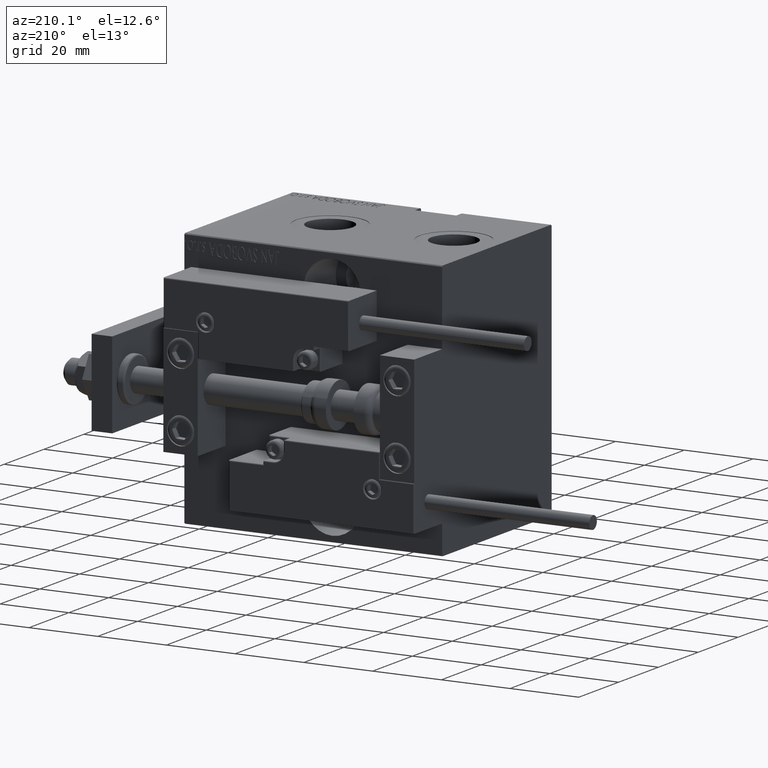
[diagram: clean part render]
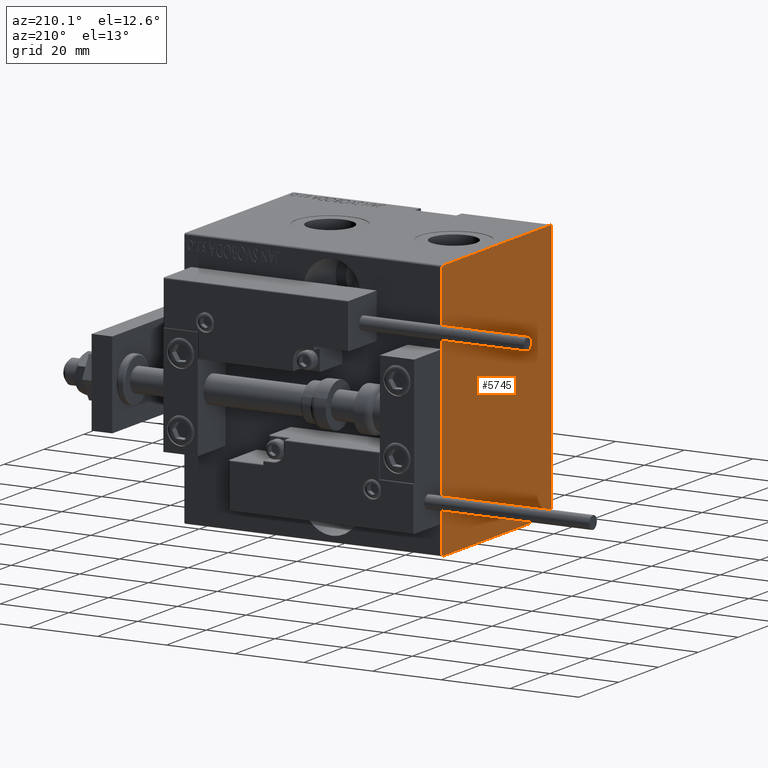
[diagram: same view with one face highlighted and labeled with its STEP entity id]
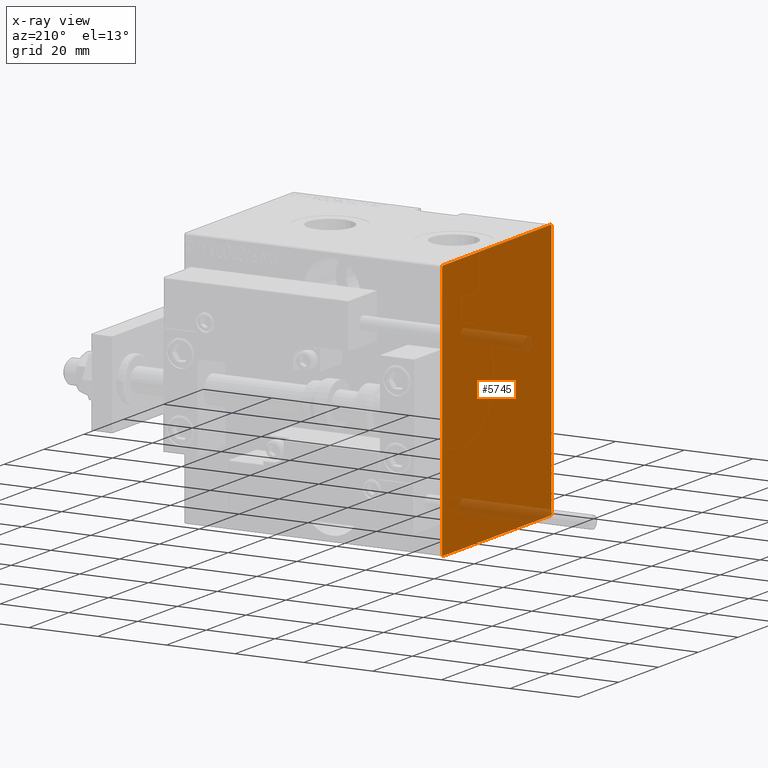
[diagram: x-ray of the same camera — body ghosted, the highlighted face saturated]
A machine part, auxiliary view. The second image highlights one B-rep face of the part: STEP entity #5745.
The next image is the same camera in x-ray: the body ghosted, the highlighted face saturated — about 7% of this face is hidden behind the body in this view.
In plain terms, the highlighted planar face has unit normal (-1, 0, 0).
Its self-contained STEP definition (entity closure, byte-faithful):
#175 = VECTOR ( 'NONE', #39816, 1000.000000000000114 ) ;
#225 = PLANE ( 'NONE',  #1192 ) ;
#253 = EDGE_CURVE ( 'NONE', #8855, #17480, #45485, .T. ) ;
#1192 = AXIS2_PLACEMENT_3D ( 'NONE', #19620, #8015, #4984 ) ;
#1286 = ORIENTED_EDGE ( 'NONE', *, *, #31186, .T. ) ;
#2605 = CARTESIAN_POINT ( 'NONE',  ( 75.00000000000000000, -27.19999999999999218, -37.50000000000000711 ) ) ;
#2845 = CARTESIAN_POINT ( 'NONE',  ( 75.00000000000000000, 32.35000000000016485, -32.34999999999978826 ) ) ;
#3633 = DIRECTION ( 'NONE',  ( 0.000000000000000000, 0.000000000000000000, -1.000000000000000000 ) ) ;
#4984 = DIRECTION ( 'NONE',  ( 0.000000000000000000, 0.000000000000000000, -1.000000000000000000 ) ) ;
#5631 = ORIENTED_EDGE ( 'NONE', *, *, #14442, .T. ) ;
#5745 = ADVANCED_FACE ( 'NONE', ( #34727 ), #225, .T. ) ;
#6864 = DIRECTION ( 'NONE',  ( -0.000000000000000000, 0.7071067811865434649, 0.7071067811865516806 ) ) ;
#7573 = CARTESIAN_POINT ( 'NONE',  ( 75.00000000000000000, 27.49999999999999645, 37.20000000000000995 ) ) ;
#7652 = LINE ( 'NONE', #35106, #42680 ) ;
#7676 = CARTESIAN_POINT ( 'NONE',  ( 75.00000000000000000, 27.19999999999999929, -37.50000000000000711 ) ) ;
#8015 = DIRECTION ( 'NONE',  ( 1.000000000000000000, 0.000000000000000000, 0.000000000000000000 ) ) ;
#8855 = VERTEX_POINT ( 'NONE', #7573 ) ;
#9338 = EDGE_CURVE ( 'NONE', #18875, #18789, #42711, .T. ) ;
#9945 = VERTEX_POINT ( 'NONE', #2605 ) ;
#10008 = ORIENTED_EDGE ( 'NONE', *, *, #253, .T. ) ;
#11067 = CARTESIAN_POINT ( 'NONE',  ( 75.00000000000000000, -27.50000000000000000, -37.50000000000000711 ) ) ;
#11305 = ORIENTED_EDGE ( 'NONE', *, *, #44793, .T. ) ;
#11317 = DIRECTION ( 'NONE',  ( 0.000000000000000000, 1.000000000000000000, 0.000000000000000000 ) ) ;
#11699 = CARTESIAN_POINT ( 'NONE',  ( 75.00000000000000000, 32.35000000000000142, 32.35000000000000142 ) ) ;
#14442 = EDGE_CURVE ( 'NONE', #9945, #43390, #29705, .T. ) ;
#16965 = CARTESIAN_POINT ( 'NONE',  ( 75.00000000000000000, -27.50000000000000000, -37.19999999999999574 ) ) ;
#17480 = VERTEX_POINT ( 'NONE', #32713 ) ;
#17597 = ORIENTED_EDGE ( 'NONE', *, *, #35499, .T. ) ;
#17980 = LINE ( 'NONE', #2845, #30665 ) ;
#18789 = VERTEX_POINT ( 'NONE', #43627 ) ;
#18875 = VERTEX_POINT ( 'NONE', #46412 ) ;
#19620 = CARTESIAN_POINT ( 'NONE',  ( 75.00000000000000000, 0.000000000000000000, 0.000000000000000000 ) ) ;
#20733 = DIRECTION ( 'NONE',  ( 0.000000000000000000, -1.000000000000000000, -2.523234146875355998E-16 ) ) ;
#21668 = CARTESIAN_POINT ( 'NONE',  ( 75.00000000000000000, 27.50000000000000355, -37.19999999999999574 ) ) ;
#21870 = ORIENTED_EDGE ( 'NONE', *, *, #39833, .T. ) ;
#23120 = DIRECTION ( 'NONE',  ( 0.000000000000000000, -9.251858538542970348E-17, 1.000000000000000000 ) ) ;
#23702 = LINE ( 'NONE', #39318, #175 ) ;
#25429 = VECTOR ( 'NONE', #42954, 999.9999999999998863 ) ;
#26650 = CARTESIAN_POINT ( 'NONE',  ( 75.00000000000000000, 27.50000000000000355, -37.50000000000000711 ) ) ;
#28293 = VERTEX_POINT ( 'NONE', #16965 ) ;
#28778 = VERTEX_POINT ( 'NONE', #21668 ) ;
#29020 = LINE ( 'NONE', #29513, #42504 ) ;
#29513 = CARTESIAN_POINT ( 'NONE',  ( 75.00000000000000000, 27.49999999999999645, 37.50000000000000711 ) ) ;
#29705 = LINE ( 'NONE', #11067, #30318 ) ;
#30318 = VECTOR ( 'NONE', #11317, 1000.000000000000000 ) ;
#30665 = VECTOR ( 'NONE', #6864, 1000.000000000000000 ) ;
#30677 = LINE ( 'NONE', #26650, #48257 ) ;
#31186 = EDGE_CURVE ( 'NONE', #28293, #9945, #23702, .T. ) ;
#32713 = CARTESIAN_POINT ( 'NONE',  ( 75.00000000000000000, 27.20000000000000284, 37.50000000000000711 ) ) ;
#33070 = ORIENTED_EDGE ( 'NONE', *, *, #9338, .T. ) ;
#34727 = FACE_OUTER_BOUND ( 'NONE', #36064, .T. ) ;
#35106 = CARTESIAN_POINT ( 'NONE',  ( 75.00000000000000000, -27.50000000000000000, 37.49999999999999289 ) ) ;
#35499 = EDGE_CURVE ( 'NONE', #17480, #18875, #29020, .T. ) ;
#36064 = EDGE_LOOP ( 'NONE', ( #5631, #38081, #21870, #10008, #17597, #33070, #11305, #1286 ) ) ;
#38081 = ORIENTED_EDGE ( 'NONE', *, *, #42686, .T. ) ;
#38405 = DIRECTION ( 'NONE',  ( -0.000000000000000000, -0.7071067811865474617, 0.7071067811865474617 ) ) ;
#39167 = CARTESIAN_POINT ( 'NONE',  ( 75.00000000000000000, -32.34999999999983800, 32.35000000000021458 ) ) ;
#39318 = CARTESIAN_POINT ( 'NONE',  ( 75.00000000000000000, -32.34999999999999432, -32.34999999999999432 ) ) ;
#39816 = DIRECTION ( 'NONE',  ( -0.000000000000000000, 0.7071067811865474617, -0.7071067811865474617 ) ) ;
#39833 = EDGE_CURVE ( 'NONE', #28778, #8855, #30677, .T. ) ;
#42504 = VECTOR ( 'NONE', #20733, 1000.000000000000000 ) ;
#42680 = VECTOR ( 'NONE', #3633, 1000.000000000000000 ) ;
#42686 = EDGE_CURVE ( 'NONE', #43390, #28778, #17980, .T. ) ;
#42711 = LINE ( 'NONE', #39167, #25429 ) ;
#42954 = DIRECTION ( 'NONE',  ( 0.000000000000000000, -0.7071067811865515695, -0.7071067811865435759 ) ) ;
#43390 = VERTEX_POINT ( 'NONE', #7676 ) ;
#43627 = CARTESIAN_POINT ( 'NONE',  ( 75.00000000000000000, -27.50000000000000000, 37.19999999999999574 ) ) ;
#44793 = EDGE_CURVE ( 'NONE', #18789, #28293, #7652, .T. ) ;
#45485 = LINE ( 'NONE', #11699, #49008 ) ;
#46412 = CARTESIAN_POINT ( 'NONE',  ( 75.00000000000000000, -27.20000000000000284, 37.49999999999999289 ) ) ;
#48257 = VECTOR ( 'NONE', #23120, 1000.000000000000000 ) ;
#49008 = VECTOR ( 'NONE', #38405, 1000.000000000000114 ) ;